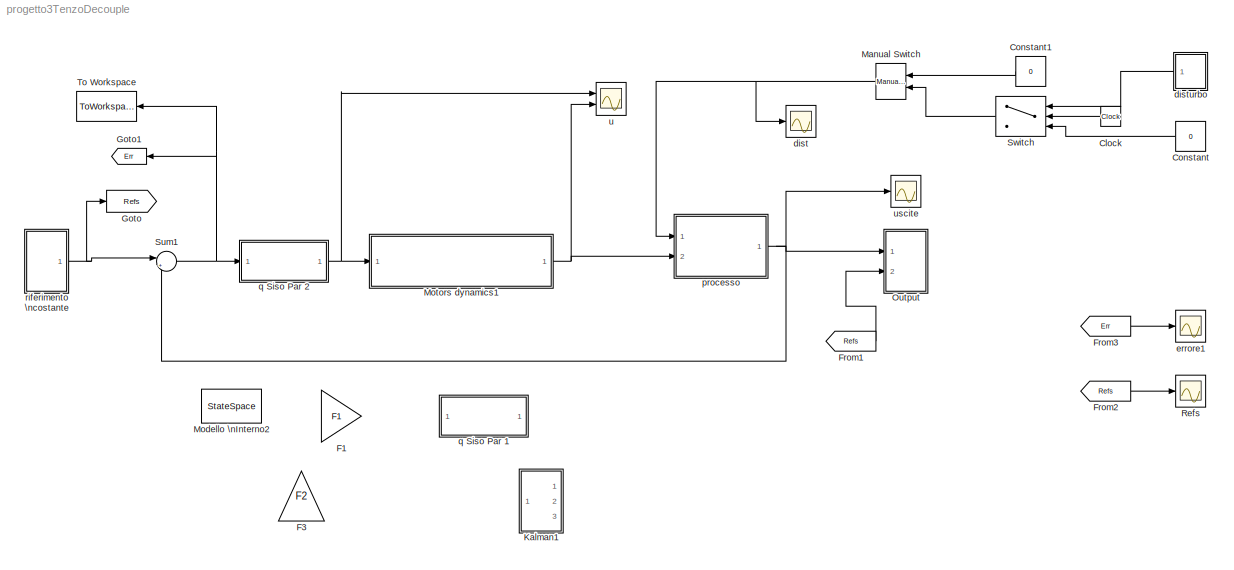
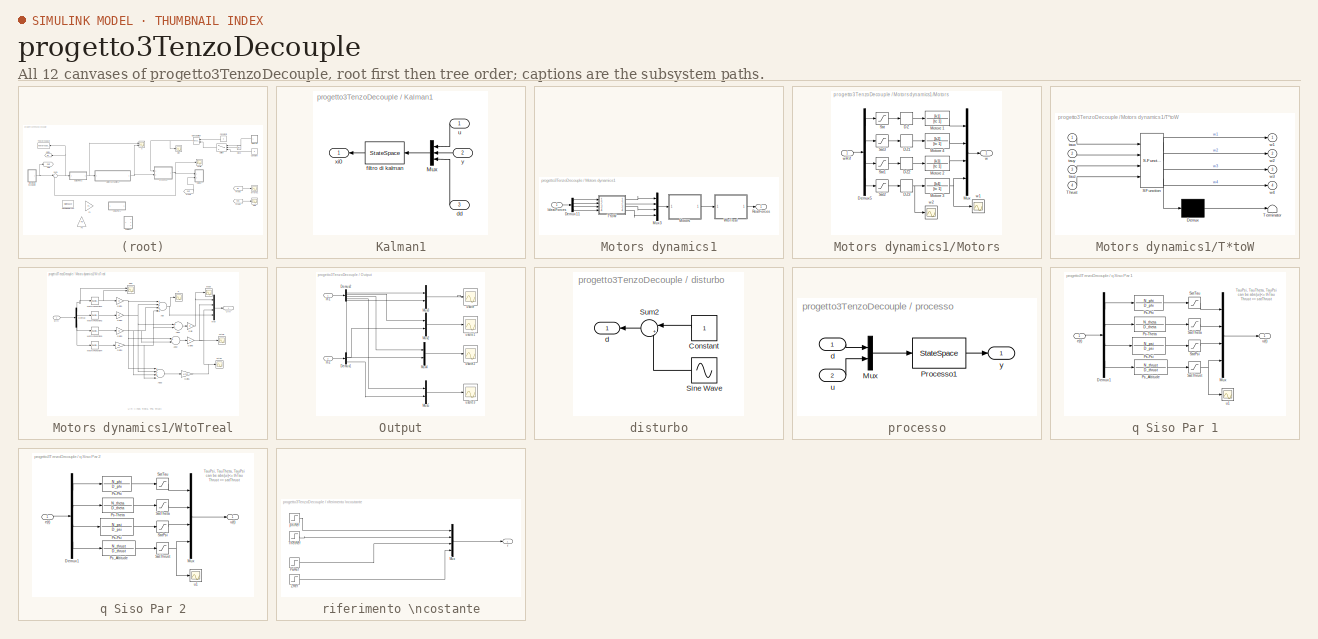
[diagram: thumbnail index - all 12 canvases of the model, root first then tree order]
MODEL progetto3TenzoDecouple
KIND model
BLOCK [Clock] Clock
  SID = 104
BLOCK [Constant] Constant
  SID = 106
  Value = 0
BLOCK [Constant] Constant1
  SID = 148
  Value = 0
BLOCK [Gain] F1
  Gain = F1
  Multiplication = Matrix(K*u) (u vector)
  OutDataTypeStr = Inherit: Inherit via internal rule
  ParamDataTypeStr = Inherit: Inherit via internal rule
  SID = 191
  SaturateOnIntegerOverflow = off
BLOCK [Gain] F3
  Gain = F2
  Multiplication = Matrix(K*u) (u vector)
  OutDataTypeStr = Inherit: Inherit via internal rule
  ParamDataTypeStr = Inherit: Inherit via internal rule
  SID = 134
  SaturateOnIntegerOverflow = off
BLOCK [From] From1
  GotoTag = Refs
  SID = 69
BLOCK [From] From2
  GotoTag = Refs
  SID = 84
BLOCK [From] From3
  GotoTag = Err
  SID = 85
BLOCK [Goto] Goto
  GotoTag = Refs
  SID = 68
BLOCK [Goto] Goto1
  GotoTag = Err
  SID = 87
BLOCK [SubSystem] Kalman1
  FunctionWithSeparateData = off
  MaskHideContents = off
  MinAlgLoopOccurrences = off
  Opaque = off
  Ports = [3, 1]
  PropExecContextOutsideSubsystem = off
  RTWSystemCode = Auto
  RequestExecContextInheritance = off
  SID = 138
BLOCK [Mux] Kalman1/Mux
  DisplayOption = bar
  Inputs = [4 4 1]
  Ports = [3, 1]
  SID = 142
BLOCK [Inport] Kalman1/dd
  IconDisplay = Port number
  Port = 3
  SID = 141
BLOCK [StateSpace] Kalman1/filtro di kalman
  A = Aoss
  B = Boss
  C = Coss
  D = Doss
  SID = 143
BLOCK [Inport] Kalman1/u
  IconDisplay = Port number
  SID = 139
BLOCK [Outport] Kalman1/xi0
  IconDisplay = Port number
  SID = 144
BLOCK [Inport] Kalman1/y
  IconDisplay = Port number
  Port = 2
  SID = 140
BLOCK [Reference] Manual Switch  REF=simulink/Signal\nRouting/Manual Switch
  Ports = [2, 1]
  SID = 149
  SourceBlock = simulink/Signal\nRouting/Manual Switch
  SourceType = Manual Switch
  action = 0
  sw = 1
  varsize = off
BLOCK [StateSpace] Modello \nInterno2
  A = AMI
  B = BMI
  C = CMI
  D = DMI
  SID = 192
BLOCK [SubSystem] Motors dynamics1
  FunctionWithSeparateData = off
  MaskHideContents = off
  MinAlgLoopOccurrences = off
  Opaque = off
  Ports = [1, 1]
  PropExecContextOutsideSubsystem = off
  RTWSystemCode = Auto
  RequestExecContextInheritance = off
  SID = 245
BLOCK [Demux] Motors dynamics1/Demux11
  DisplayOption = bar
  Ports = [1, 4]
  SID = 247
BLOCK [Inport] Motors dynamics1/IdealForces
  IconDisplay = Port number
  SID = 246
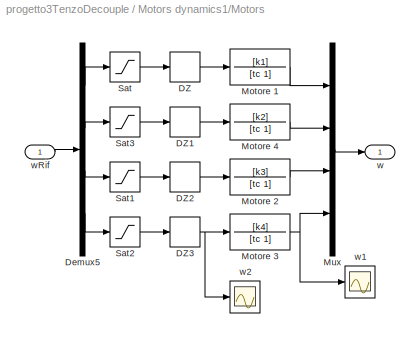
BLOCK [SubSystem] Motors dynamics1/Motors
  FunctionWithSeparateData = off
  MaskHideContents = off
  MinAlgLoopOccurrences = off
  Opaque = off
  Ports = [1, 1]
  PropExecContextOutsideSubsystem = off
  RTWSystemCode = Auto
  RequestExecContextInheritance = off
  SID = 248
BLOCK [DeadZone] Motors dynamics1/Motors/DZ
  LowerValue = 0
  SID = 250
  UpperValue = deadMotorsZone
BLOCK [DeadZone] Motors dynamics1/Motors/DZ1
  LowerValue = 0
  SID = 251
  UpperValue = deadMotorsZone
BLOCK [DeadZone] Motors dynamics1/Motors/DZ2
  LowerValue = 0
  SID = 252
  UpperValue = deadMotorsZone
BLOCK [DeadZone] Motors dynamics1/Motors/DZ3
  LowerValue = 0
  SID = 253
  UpperValue = deadMotorsZone
BLOCK [Demux] Motors dynamics1/Motors/Demux5
  DisplayOption = bar
  Ports = [1, 4]
  SID = 254
BLOCK [TransferFcn] Motors dynamics1/Motors/Motore 1
  Denominator = [tc 1]
  Numerator = [k1]
  SID = 255
BLOCK [TransferFcn] Motors dynamics1/Motors/Motore 2
  Denominator = [tc 1]
  Numerator = [k3]
  SID = 256
BLOCK [TransferFcn] Motors dynamics1/Motors/Motore 3
  Denominator = [tc 1]
  Numerator = [k4]
  SID = 257
BLOCK [TransferFcn] Motors dynamics1/Motors/Motore 4
  Denominator = [tc 1]
  Numerator = [k2]
  SID = 258
BLOCK [Mux] Motors dynamics1/Motors/Mux
  DisplayOption = bar
  Ports = [4, 1]
  SID = 259
BLOCK [Saturate] Motors dynamics1/Motors/Sat
  InputPortMap = u0
  LowerLimit = 0
  Ports = [1, 1]
  SID = 260
  UpperLimit = satMaxRPM
BLOCK [Saturate] Motors dynamics1/Motors/Sat1
  InputPortMap = u0
  LowerLimit = 0
  Ports = [1, 1]
  SID = 261
  UpperLimit = satMaxRPM
BLOCK [Saturate] Motors dynamics1/Motors/Sat2
  InputPortMap = u0
  LowerLimit = 0
  Ports = [1, 1]
  SID = 262
  UpperLimit = satMaxRPM
BLOCK [Saturate] Motors dynamics1/Motors/Sat3
  InputPortMap = u0
  LowerLimit = 0
  Ports = [1, 1]
  SID = 263
  UpperLimit = satMaxRPM
BLOCK [Outport] Motors dynamics1/Motors/w
  IconDisplay = Port number
  SID = 266
BLOCK [Scope] Motors dynamics1/Motors/w1
  DataFormat = StructureWithTime
  Floating = off
  NumInputPorts = 1
  Ports = [1]
  SID = 264
  SampleTime = 0
  SaveName = ScopeData15
  ShowLegends = off
  YMax = 999.705
  YMin = 904.495
BLOCK [Scope] Motors dynamics1/Motors/w2
  DataFormat = StructureWithTime
  Floating = off
  NumInputPorts = 1
  Ports = [1]
  SID = 265
  SampleTime = 0
  SaveName = ScopeData10
  ShowLegends = off
  YMax = 999.705
  YMin = 904.495
BLOCK [Inport] Motors dynamics1/Motors/wRif
  IconDisplay = Port number
  SID = 249
BLOCK [Mux] Motors dynamics1/Mux3
  DisplayOption = bar
  Ports = [4, 1]
  SID = 267
BLOCK [Outport] Motors dynamics1/RealForces
  IconDisplay = Port number
  SID = 294
BLOCK [SubSystem] Motors dynamics1/T*toW
  ErrorFcn = Stateflow.Translate.translate
  FunctionWithSeparateData = off
  MaskDisplay = bgColor = Simulink.Root.ColorString2Rgb(get_param(gcbh, 'BackgroundColor')); image(imread('private/eml_membrane_16.png','png','BackgroundColor',bgColor(1:3)),'center'); disp([10 10 'mixer']);
  MaskHideContents = off
  MaskIconFrame = on
  MaskIconOpaque = on
  MaskIconRotate = none
  MaskIconUnits = normalized
  MaskPortRotate = default
  MaskSelfModifiable = on
  MinAlgLoopOccurrences = off
  Opaque = off
  PermitHierarchicalResolution = ExplicitOnly
  Ports = [4, 4]
  PropExecContextOutsideSubsystem = off
  RTWSystemCode = Auto
  RequestExecContextInheritance = off
  SFBlockType = MATLAB Function
  SID = 268
  TreatAsAtomicUnit = on
BLOCK [Demux] Motors dynamics1/T*toW/ Demux 
  Outputs = 1
  Ports = [1, 1]
  SID = 268::30
BLOCK [S-Function] Motors dynamics1/T*toW/ SFunction 
  EnableBusSupport = on
  FunctionName = sf_sfun
  PortCounts = [4 5]
  Ports = [4, 5]
  SID = 268::29
  Tag = Stateflow S-Function progetto3TenzoDecouple 2
BLOCK [Terminator] Motors dynamics1/T*toW/ Terminator 
  SID = 268::31
BLOCK [Inport] Motors dynamics1/T*toW/Thrust
  IconDisplay = Port number
  Port = 4
  SID = 268::1
BLOCK [Inport] Motors dynamics1/T*toW/taux
  IconDisplay = Port number
  SID = 268::23
BLOCK [Inport] Motors dynamics1/T*toW/tauy
  IconDisplay = Port number
  Port = 2
  SID = 268::24
BLOCK [Inport] Motors dynamics1/T*toW/tauz
  IconDisplay = Port number
  Port = 3
  SID = 268::25
BLOCK [Outport] Motors dynamics1/T*toW/w1
  IconDisplay = Port number
  SID = 268::5
BLOCK [Outport] Motors dynamics1/T*toW/w2
  IconDisplay = Port number
  Port = 2
  SID = 268::26
BLOCK [Outport] Motors dynamics1/T*toW/w3
  IconDisplay = Port number
  Port = 3
  SID = 268::27
BLOCK [Outport] Motors dynamics1/T*toW/w4
  IconDisplay = Port number
  Port = 4
  SID = 268::28
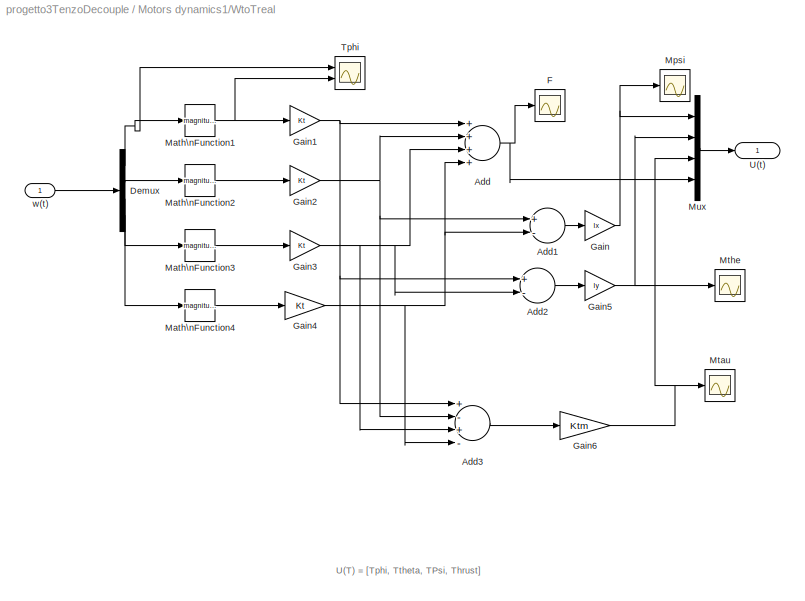
BLOCK [SubSystem] Motors dynamics1/WtoTreal
  FunctionWithSeparateData = off
  MaskHideContents = off
  MinAlgLoopOccurrences = off
  Opaque = off
  Ports = [1, 1]
  PropExecContextOutsideSubsystem = off
  RTWSystemCode = Auto
  RequestExecContextInheritance = off
  SID = 269
BLOCK [Sum] Motors dynamics1/WtoTreal/Add
  InputSameDT = off
  Inputs = ++++
  OutDataTypeStr = Inherit: Inherit via internal rule
  Ports = [4, 1]
  SID = 271
  SaturateOnIntegerOverflow = off
BLOCK [Sum] Motors dynamics1/WtoTreal/Add1
  InputSameDT = off
  Inputs = +-
  OutDataTypeStr = Inherit: Inherit via internal rule
  Ports = [2, 1]
  SID = 272
  SaturateOnIntegerOverflow = off
BLOCK [Sum] Motors dynamics1/WtoTreal/Add2
  InputSameDT = off
  Inputs = +-
  OutDataTypeStr = Inherit: Inherit via internal rule
  Ports = [2, 1]
  SID = 273
  SaturateOnIntegerOverflow = off
BLOCK [Sum] Motors dynamics1/WtoTreal/Add3
  InputSameDT = off
  Inputs = +-+-
  OutDataTypeStr = Inherit: Inherit via internal rule
  Ports = [4, 1]
  SID = 274
  SaturateOnIntegerOverflow = off
BLOCK [Demux] Motors dynamics1/WtoTreal/Demux
  DisplayOption = bar
  Ports = [1, 4]
  SID = 275
BLOCK [Scope] Motors dynamics1/WtoTreal/F
  DataFormat = StructureWithTime
  Floating = off
  NumInputPorts = 1
  Ports = [1]
  SID = 276
  SampleTime = 0
  SaveName = ScopeData17
  ShowLegends = off
  ZoomMode = yonly
BLOCK [Gain] Motors dynamics1/WtoTreal/Gain
  Gain = lx
  OutDataTypeStr = Inherit: Inherit via internal rule
  ParamDataTypeStr = Inherit: Inherit via internal rule
  SID = 278
  SaturateOnIntegerOverflow = off
BLOCK [Gain] Motors dynamics1/WtoTreal/Gain1
  Gain = Kt
  OutDataTypeStr = Inherit: Inherit via internal rule
  ParamDataTypeStr = Inherit: Inherit via internal rule
  SID = 279
  SaturateOnIntegerOverflow = off
BLOCK [Gain] Motors dynamics1/WtoTreal/Gain2
  Gain = Kt
  OutDataTypeStr = Inherit: Inherit via internal rule
  ParamDataTypeStr = Inherit: Inherit via internal rule
  SID = 280
  SaturateOnIntegerOverflow = off
BLOCK [Gain] Motors dynamics1/WtoTreal/Gain3
  Gain = Kt
  OutDataTypeStr = Inherit: Inherit via internal rule
  ParamDataTypeStr = Inherit: Inherit via internal rule
  SID = 281
  SaturateOnIntegerOverflow = off
BLOCK [Gain] Motors dynamics1/WtoTreal/Gain4
  Gain = Kt
  OutDataTypeStr = Inherit: Inherit via internal rule
  ParamDataTypeStr = Inherit: Inherit via internal rule
  SID = 282
  SaturateOnIntegerOverflow = off
BLOCK [Gain] Motors dynamics1/WtoTreal/Gain5
  Gain = ly
  OutDataTypeStr = Inherit: Inherit via internal rule
  ParamDataTypeStr = Inherit: Inherit via internal rule
  SID = 283
  SaturateOnIntegerOverflow = off
BLOCK [Gain] Motors dynamics1/WtoTreal/Gain6
  Gain = Ktm
  OutDataTypeStr = Inherit: Inherit via internal rule
  ParamDataTypeStr = Inherit: Inherit via internal rule
  SID = 284
  SaturateOnIntegerOverflow = off
BLOCK [Math] Motors dynamics1/WtoTreal/Math\nFunction1
  Operator = magnitude^2
  Ports = [1, 1]
  SID = 285
BLOCK [Math] Motors dynamics1/WtoTreal/Math\nFunction2
  Operator = magnitude^2
  Ports = [1, 1]
  SID = 286
BLOCK [Math] Motors dynamics1/WtoTreal/Math\nFunction3
  Operator = magnitude^2
  Ports = [1, 1]
  SID = 287
BLOCK [Math] Motors dynamics1/WtoTreal/Math\nFunction4
  Operator = magnitude^2
  Ports = [1, 1]
  SID = 288
BLOCK [Scope] Motors dynamics1/WtoTreal/Mpsi
  DataFormat = StructureWithTime
  Floating = off
  NumInputPorts = 1
  Ports = [1]
  SID = 289
  SampleTime = 0
  SaveName = ScopeData14
  ShowLegends = off
  ZoomMode = yonly
BLOCK [Scope] Motors dynamics1/WtoTreal/Mtau
  DataFormat = StructureWithTime
  Floating = off
  NumInputPorts = 1
  Ports = [1]
  SID = 290
  SampleTime = 0
  SaveName = ScopeData11
  ShowLegends = off
  ZoomMode = yonly
BLOCK [Scope] Motors dynamics1/WtoTreal/Mthe
  DataFormat = StructureWithTime
  Floating = off
  NumInputPorts = 1
  Ports = [1]
  SID = 291
  SampleTime = 0
  SaveName = ScopeData13
  ShowLegends = off
BLOCK [Mux] Motors dynamics1/WtoTreal/Mux
  DisplayOption = bar
  Ports = [4, 1]
  SID = 292
BLOCK [Scope] Motors dynamics1/WtoTreal/Tphi
  DataFormat = StructureWithTime
  Floating = off
  NumInputPorts = 2
  Ports = [2]
  SID = 277
  SampleTime = 0
  SaveName = ScopeData19
  ShowLegends = off
  YMax = 5~5
  YMin = -5~-5
  ZoomMode = yonly
BLOCK [Outport] Motors dynamics1/WtoTreal/U(t)
  IconDisplay = Port number
  SID = 293
BLOCK [Inport] Motors dynamics1/WtoTreal/w(t)
  IconDisplay = Port number
  SID = 270
BLOCK [SubSystem] Output
  FunctionWithSeparateData = off
  MaskHideContents = off
  MinAlgLoopOccurrences = off
  Opaque = off
  Ports = [2]
  PropExecContextOutsideSubsystem = off
  RTWSystemCode = Auto
  RequestExecContextInheritance = off
  SID = 71
BLOCK [Demux] Output/Demux1
  DisplayOption = bar
  Ports = [1, 4]
  SID = 74
BLOCK [Demux] Output/Demux2
  DisplayOption = bar
  Ports = [1, 4]
  SID = 76
BLOCK [Inport] Output/In1
  IconDisplay = Port number
  SID = 72
BLOCK [Inport] Output/In2
  IconDisplay = Port number
  Port = 2
  SID = 73
BLOCK [Mux] Output/Mux2
  DisplayOption = bar
  Inputs = 2
  Ports = [2, 1]
  SID = 77
BLOCK [Mux] Output/Mux3
  DisplayOption = bar
  Inputs = 2
  Ports = [2, 1]
  SID = 64
BLOCK [Mux] Output/Mux4
  DisplayOption = bar
  Inputs = 2
  Ports = [2, 1]
  SID = 79
BLOCK [Mux] Output/Mux5
  DisplayOption = bar
  Inputs = 2
  Ports = [2, 1]
  SID = 81
BLOCK [Scope] Output/uscite
  DataFormat = StructureWithTime
  Floating = off
  LimitDataPoints = off
  NumInputPorts = 1
  Ports = [1]
  SID = 25
  SampleTime = 0
  ShowLegends = off
  TickLabels = on
  YMax = 7
  YMin = -3.5
  ZoomMode = xonly
BLOCK [Scope] Output/uscite1
  DataFormat = StructureWithTime
  Floating = off
  LimitDataPoints = off
  NumInputPorts = 1
  Ports = [1]
  SID = 78
  SampleTime = 0
  SaveName = ScopeData4
  ShowLegends = off
  TickLabels = on
  TimeRange = 30
  YMax = 4.25
  YMin = 0.75
  ZoomMode = xonly
BLOCK [Scope] Output/uscite2
  DataFormat = StructureWithTime
  Floating = off
  LimitDataPoints = off
  NumInputPorts = 1
  Ports = [1]
  SID = 80
  SampleTime = 0
  SaveName = ScopeData6
  ShowLegends = off
  TickLabels = on
  YMax = 4.25
  YMin = 0.75
  ZoomMode = xonly
BLOCK [Scope] Output/uscite3
  DataFormat = StructureWithTime
  Floating = off
  LimitDataPoints = off
  NumInputPorts = 1
  Ports = [1]
  SID = 82
  SampleTime = 0
  SaveName = ScopeData7
  ShowLegends = off
  TickLabels = on
  YMax = 4.25
  YMin = 0.75
  ZoomMode = xonly
BLOCK [Scope] Refs
  DataFormat = StructureWithTime
  Floating = off
  LimitDataPoints = off
  NumInputPorts = 1
  Ports = [1]
  SID = 83
  SampleTime = 0
  SaveName = ScopeData1
  ShowLegends = off
BLOCK [Sum] Sum1
  IconShape = round
  InputSameDT = off
  Inputs = |+-
  OutDataTypeStr = Inherit: Inherit via internal rule
  Ports = [2, 1]
  SID = 24
  SaturateOnIntegerOverflow = off
BLOCK [Switch] Switch
  InputSameDT = off
  SID = 103
  SaturateOnIntegerOverflow = off
  Threshold = 5
BLOCK [ToWorkspace] To Workspace
  MaxDataPoints = inf
  Ports = [1]
  SID = 59
  SampleTime = -1
  SaveFormat = Structure
  VariableName = simout
BLOCK [Scope] dist
  DataFormat = StructureWithTime
  Floating = off
  LimitDataPoints = off
  NumInputPorts = 1
  Ports = [1]
  SID = 54
  SampleTime = 0
  SaveName = ScopeData5
  ShowLegends = off
BLOCK [SubSystem] disturbo
  FunctionWithSeparateData = off
  MaskHideContents = off
  MinAlgLoopOccurrences = off
  Opaque = off
  Ports = [0, 1]
  PropExecContextOutsideSubsystem = off
  RTWSystemCode = Auto
  RequestExecContextInheritance = off
  SID = 50
BLOCK [Constant] disturbo/Constant
  SID = 47
BLOCK [Sin] disturbo/Sine Wave
  Amplitude = 0.5
  Frequency = omega
  Ports = [0, 1]
  SID = 48
  SampleTime = 0
BLOCK [Sum] disturbo/Sum2
  IconShape = round
  InputSameDT = off
  Inputs = |++
  OutDataTypeStr = Inherit: Inherit via internal rule
  Ports = [2, 1]
  SID = 49
  SaturateOnIntegerOverflow = off
BLOCK [Outport] disturbo/d
  IconDisplay = Port number
  SID = 51
BLOCK [Scope] errore1
  DataFormat = StructureWithTime
  Floating = off
  LimitDataPoints = off
  NumInputPorts = 1
  Ports = [1]
  SID = 86
  SampleTime = 0
  SaveName = ScopeData8
  ShowLegends = off
BLOCK [SubSystem] processo
  FunctionWithSeparateData = off
  MaskHideContents = off
  MinAlgLoopOccurrences = off
  Opaque = off
  Ports = [2, 1]
  PropExecContextOutsideSubsystem = off
  RTWSystemCode = Auto
  RequestExecContextInheritance = off
  SID = 43
BLOCK [Mux] processo/Mux
  DisplayOption = bar
  Inputs = [1 4]
  Ports = [2, 1]
  SID = 41
BLOCK [StateSpace] processo/Processo1
  A = AMin
  B = Bmod
  C = ClocalMin
  D = Dmod
  SID = 42
BLOCK [Inport] processo/d
  IconDisplay = Port number
  SID = 44
BLOCK [Inport] processo/u
  IconDisplay = Port number
  Port = 2
  SID = 46
BLOCK [Outport] processo/y
  IconDisplay = Port number
  SID = 45
BLOCK [SubSystem] q Siso Par 1
  FunctionWithSeparateData = off
  MaskHideContents = off
  MinAlgLoopOccurrences = off
  Opaque = off
  Ports = [1, 1]
  PropExecContextOutsideSubsystem = off
  RTWSystemCode = Auto
  RequestExecContextInheritance = off
  SID = 161
BLOCK [Demux] q Siso Par 1/Demux1
  DisplayOption = bar
  Ports = [1, 4]
  SID = 163
BLOCK [Mux] q Siso Par 1/Mux
  DisplayOption = bar
  Ports = [4, 1]
  SID = 164
BLOCK [TransferFcn] q Siso Par 1/Ps-Phi
  Denominator = D_phi
  Numerator = N_phi
  SID = 165
BLOCK [TransferFcn] q Siso Par 1/Ps-Psi
  Denominator = D_psi
  Numerator = N_psi
  SID = 166
BLOCK [TransferFcn] q Siso Par 1/Ps-Theta
  Denominator = D_theta
  Numerator = N_theta
  SID = 167
BLOCK [TransferFcn] q Siso Par 1/Ps_Altitude
  Denominator = D_thrust
  Numerator = N_thrust
  SID = 168
BLOCK [Saturate] q Siso Par 1/SatPsi
  InputPortMap = u0
  LowerLimit = -satTau
  Ports = [1, 1]
  SID = 169
  UpperLimit = satTau
BLOCK [Saturate] q Siso Par 1/SatTau
  InputPortMap = u0
  LowerLimit = -satTau
  Ports = [1, 1]
  SID = 170
  UpperLimit = satTau
BLOCK [Saturate] q Siso Par 1/SatTheta
  InputPortMap = u0
  LowerLimit = -satTau
  Ports = [1, 1]
  SID = 171
  UpperLimit = satTau
BLOCK [Saturate] q Siso Par 1/SatThrust
  InputPortMap = u0
  LowerLimit = -satNegThrust
  Ports = [1, 1]
  SID = 172
  UpperLimit = satThrust
BLOCK [Inport] q Siso Par 1/e(t)
  IconDisplay = Port number
  SID = 162
BLOCK [Outport] q Siso Par 1/u(t)
  IconDisplay = Port number
  SID = 174
BLOCK [Scope] q Siso Par 1/u1
  DataFormat = StructureWithTime
  Floating = off
  LimitDataPoints = off
  NumInputPorts = 1
  Ports = [1]
  SID = 173
  SampleTime = 0
  SaveName = ScopeData9
  ShowLegends = off
  ZoomMode = xonly
BLOCK [SubSystem] q Siso Par 2
  FunctionWithSeparateData = off
  MaskHideContents = off
  MinAlgLoopOccurrences = off
  Opaque = off
  Ports = [1, 1]
  PropExecContextOutsideSubsystem = off
  RTWSystemCode = Auto
  RequestExecContextInheritance = off
  SID = 176
BLOCK [Demux] q Siso Par 2/Demux1
  DisplayOption = bar
  Ports = [1, 4]
  SID = 178
BLOCK [Mux] q Siso Par 2/Mux
  DisplayOption = bar
  Ports = [4, 1]
  SID = 179
BLOCK [TransferFcn] q Siso Par 2/Ps-Phi
  Denominator = D_phi
  Numerator = N_phi
  SID = 180
BLOCK [TransferFcn] q Siso Par 2/Ps-Psi
  Denominator = D_psi
  Numerator = N_psi
  SID = 181
BLOCK [TransferFcn] q Siso Par 2/Ps-Theta
  Denominator = D_theta
  Numerator = N_theta
  SID = 182
BLOCK [TransferFcn] q Siso Par 2/Ps_Altitude
  Denominator = D_thrust
  Numerator = N_thrust
  SID = 183
BLOCK [Saturate] q Siso Par 2/SatPsi
  InputPortMap = u0
  LowerLimit = -satTau
  Ports = [1, 1]
  SID = 184
  UpperLimit = satTau
BLOCK [Saturate] q Siso Par 2/SatTau
  InputPortMap = u0
  LowerLimit = -satTau
  Ports = [1, 1]
  SID = 185
  UpperLimit = satTau
BLOCK [Saturate] q Siso Par 2/SatTheta
  InputPortMap = u0
  LowerLimit = -satTau
  Ports = [1, 1]
  SID = 186
  UpperLimit = satTau
BLOCK [Saturate] q Siso Par 2/SatThrust
  InputPortMap = u0
  LowerLimit = -satNegThrust
  Ports = [1, 1]
  SID = 187
  UpperLimit = satThrust
BLOCK [Inport] q Siso Par 2/e(t)
  IconDisplay = Port number
  SID = 177
BLOCK [Outport] q Siso Par 2/u(t)
  IconDisplay = Port number
  SID = 189
BLOCK [Scope] q Siso Par 2/u1
  DataFormat = StructureWithTime
  Floating = off
  LimitDataPoints = off
  NumInputPorts = 1
  Ports = [1]
  SID = 188
  SampleTime = 0
  SaveName = ScopeData9
  ShowLegends = off
  ZoomMode = xonly
BLOCK [SubSystem] riferimento \ncostante
  FunctionWithSeparateData = off
  MaskHideContents = off
  MinAlgLoopOccurrences = off
  Opaque = off
  Ports = [0, 1]
  PropExecContextOutsideSubsystem = off
  RTWSystemCode = Auto
  RequestExecContextInheritance = off
  SID = 11
BLOCK [Mux] riferimento \ncostante/Mux
  DisplayOption = bar
  Inputs = [1 1 1 1]
  Ports = [4, 1]
  SID = 10
BLOCK [Step] riferimento \ncostante/PsiRef
  After = 2.5
  SID = 152
  SampleTime = 0
  Time = 0.8
BLOCK [Step] riferimento \ncostante/ThetRef
  After = 2
  SID = 151
  SampleTime = 0
  Time = 0.5
BLOCK [Step] riferimento \ncostante/ZRef
  After = 2.5
  SID = 146
  SampleTime = 0
  Time = 3
BLOCK [Step] riferimento \ncostante/phiRef
  After = 1.5
  SID = 150
  SampleTime = 0
BLOCK [Outport] riferimento \ncostante/r
  IconDisplay = Port number
  SID = 12
BLOCK [Scope] u
  DataFormat = StructureWithTime
  Floating = off
  LimitDataPoints = off
  NumInputPorts = 2
  Ports = [2]
  SID = 28
  SampleTime = 0
  SaveName = ScopeData3
  ShowLegends = off
  YMax = 5~5
  YMin = -5~-5
BLOCK [Scope] uscite
  DataFormat = StructureWithTime
  Floating = off
  LimitDataPoints = off
  NumInputPorts = 1
  Ports = [1]
  SID = 88
  SampleTime = 0
  SaveName = ScopeData2
  ShowLegends = off
  TimeRange = 80
  YMax = 15.6384603336206
  YMin = -17.45927637246444
  ZoomMode = yonly
ANNOTATION Motors dynamics1/WtoTreal: U(T) = [Tphi, Ttheta, TPsi, Thrust]
ANNOTATION q Siso Par 1: TauPsi, TauTheta, TauPsi\n can be abs(ui)<= thTau\nThrust <= satThrust
ANNOTATION q Siso Par 2: TauPsi, TauTheta, TauPsi\n can be abs(ui)<= thTau\nThrust <= satThrust
LINE Clock:1 -> Switch:2
LINE Constant1:1 -> Manual Switch:1
LINE Constant:1 -> Switch:3
LINE From1:1 -> Output:2
LINE From2:1 -> Refs:1
LINE From3:1 -> errore1:1
LINE Kalman1/Mux:1 -> Kalman1/filtro di kalman:1
LINE Kalman1/dd:1 -> Kalman1/Mux:3
LINE Kalman1/filtro di kalman:1 -> Kalman1/xi0:1
LINE Kalman1/u:1 -> Kalman1/Mux:1
LINE Kalman1/y:1 -> Kalman1/Mux:2
NET Manual Switch:1 -> dist:1, processo:1
LINE Motors dynamics1/Demux11:1 -> Motors dynamics1/T*toW:1
LINE Motors dynamics1/Demux11:2 -> Motors dynamics1/T*toW:2
LINE Motors dynamics1/Demux11:3 -> Motors dynamics1/T*toW:3
LINE Motors dynamics1/Demux11:4 -> Motors dynamics1/T*toW:4
LINE Motors dynamics1/IdealForces:1 -> Motors dynamics1/Demux11:1
LINE Motors dynamics1/Motors/DZ1:1 -> Motors dynamics1/Motors/Motore 4:1
LINE Motors dynamics1/Motors/DZ2:1 -> Motors dynamics1/Motors/Motore 2:1
NET Motors dynamics1/Motors/DZ3:1 -> Motors dynamics1/Motors/Motore 3:1, Motors dynamics1/Motors/w2:1
LINE Motors dynamics1/Motors/DZ:1 -> Motors dynamics1/Motors/Motore 1:1
LINE Motors dynamics1/Motors/Demux5:1 -> Motors dynamics1/Motors/Sat:1
LINE Motors dynamics1/Motors/Demux5:2 -> Motors dynamics1/Motors/Sat3:1
LINE Motors dynamics1/Motors/Demux5:3 -> Motors dynamics1/Motors/Sat1:1
LINE Motors dynamics1/Motors/Demux5:4 -> Motors dynamics1/Motors/Sat2:1
LINE Motors dynamics1/Motors/Motore 1:1 -> Motors dynamics1/Motors/Mux:1
LINE Motors dynamics1/Motors/Motore 2:1 -> Motors dynamics1/Motors/Mux:3
NET Motors dynamics1/Motors/Motore 3:1 -> Motors dynamics1/Motors/Mux:4, Motors dynamics1/Motors/w1:1
LINE Motors dynamics1/Motors/Motore 4:1 -> Motors dynamics1/Motors/Mux:2
LINE Motors dynamics1/Motors/Mux:1 -> Motors dynamics1/Motors/w:1
LINE Motors dynamics1/Motors/Sat1:1 -> Motors dynamics1/Motors/DZ2:1
LINE Motors dynamics1/Motors/Sat2:1 -> Motors dynamics1/Motors/DZ3:1
LINE Motors dynamics1/Motors/Sat3:1 -> Motors dynamics1/Motors/DZ1:1
LINE Motors dynamics1/Motors/Sat:1 -> Motors dynamics1/Motors/DZ:1
LINE Motors dynamics1/Motors/wRif:1 -> Motors dynamics1/Motors/Demux5:1
LINE Motors dynamics1/Motors:1 -> Motors dynamics1/WtoTreal:1
LINE Motors dynamics1/Mux3:1 -> Motors dynamics1/Motors:1
LINE Motors dynamics1/T*toW/ Demux :1 -> Motors dynamics1/T*toW/ Terminator :1
LINE Motors dynamics1/T*toW/ SFunction :1 -> Motors dynamics1/T*toW/ Demux :1
LINE Motors dynamics1/T*toW/ SFunction :2 -> Motors dynamics1/T*toW/w1:1
LINE Motors dynamics1/T*toW/ SFunction :3 -> Motors dynamics1/T*toW/w2:1
LINE Motors dynamics1/T*toW/ SFunction :4 -> Motors dynamics1/T*toW/w3:1
LINE Motors dynamics1/T*toW/ SFunction :5 -> Motors dynamics1/T*toW/w4:1
LINE Motors dynamics1/T*toW/Thrust:1 -> Motors dynamics1/T*toW/ SFunction :4
LINE Motors dynamics1/T*toW/taux:1 -> Motors dynamics1/T*toW/ SFunction :1
LINE Motors dynamics1/T*toW/tauy:1 -> Motors dynamics1/T*toW/ SFunction :2
LINE Motors dynamics1/T*toW/tauz:1 -> Motors dynamics1/T*toW/ SFunction :3
LINE Motors dynamics1/T*toW:1 -> Motors dynamics1/Mux3:1
LINE Motors dynamics1/T*toW:2 -> Motors dynamics1/Mux3:2
LINE Motors dynamics1/T*toW:3 -> Motors dynamics1/Mux3:3
LINE Motors dynamics1/T*toW:4 -> Motors dynamics1/Mux3:4
LINE Motors dynamics1/WtoTreal/Add1:1 -> Motors dynamics1/WtoTreal/Gain:1
LINE Motors dynamics1/WtoTreal/Add2:1 -> Motors dynamics1/WtoTreal/Gain5:1
LINE Motors dynamics1/WtoTreal/Add3:1 -> Motors dynamics1/WtoTreal/Gain6:1
NET Motors dynamics1/WtoTreal/Add:1 -> Motors dynamics1/WtoTreal/F:1, Motors dynamics1/WtoTreal/Mux:4
NET Motors dynamics1/WtoTreal/Demux:1 -> Motors dynamics1/WtoTreal/Math\nFunction1:1, Motors dynamics1/WtoTreal/Tphi:1
LINE Motors dynamics1/WtoTreal/Demux:2 -> Motors dynamics1/WtoTreal/Math\nFunction2:1
LINE Motors dynamics1/WtoTreal/Demux:3 -> Motors dynamics1/WtoTreal/Math\nFunction3:1
LINE Motors dynamics1/WtoTreal/Demux:4 -> Motors dynamics1/WtoTreal/Math\nFunction4:1
NET Motors dynamics1/WtoTreal/Gain1:1 -> Motors dynamics1/WtoTreal/Add2:1, Motors dynamics1/WtoTreal/Add3:1, Motors dynamics1/WtoTreal/Add:1
NET Motors dynamics1/WtoTreal/Gain2:1 -> Motors dynamics1/WtoTreal/Add1:1, Motors dynamics1/WtoTreal/Add3:2, Motors dynamics1/WtoTreal/Add:2
NET Motors dynamics1/WtoTreal/Gain3:1 -> Motors dynamics1/WtoTreal/Add2:2, Motors dynamics1/WtoTreal/Add3:3, Motors dynamics1/WtoTreal/Add:3
NET Motors dynamics1/WtoTreal/Gain4:1 -> Motors dynamics1/WtoTreal/Add1:2, Motors dynamics1/WtoTreal/Add3:4, Motors dynamics1/WtoTreal/Add:4
NET Motors dynamics1/WtoTreal/Gain5:1 -> Motors dynamics1/WtoTreal/Mthe:1, Motors dynamics1/WtoTreal/Mux:2
NET Motors dynamics1/WtoTreal/Gain6:1 -> Motors dynamics1/WtoTreal/Mtau:1, Motors dynamics1/WtoTreal/Mux:3
NET Motors dynamics1/WtoTreal/Gain:1 -> Motors dynamics1/WtoTreal/Mpsi:1, Motors dynamics1/WtoTreal/Mux:1
NET Motors dynamics1/WtoTreal/Math\nFunction1:1 -> Motors dynamics1/WtoTreal/Gain1:1, Motors dynamics1/WtoTreal/Tphi:2
LINE Motors dynamics1/WtoTreal/Math\nFunction2:1 -> Motors dynamics1/WtoTreal/Gain2:1
LINE Motors dynamics1/WtoTreal/Math\nFunction3:1 -> Motors dynamics1/WtoTreal/Gain3:1
LINE Motors dynamics1/WtoTreal/Math\nFunction4:1 -> Motors dynamics1/WtoTreal/Gain4:1
LINE Motors dynamics1/WtoTreal/Mux:1 -> Motors dynamics1/WtoTreal/U(t):1
LINE Motors dynamics1/WtoTreal/w(t):1 -> Motors dynamics1/WtoTreal/Demux:1
LINE Motors dynamics1/WtoTreal:1 -> Motors dynamics1/RealForces:1
NET Motors dynamics1:1 -> processo:2, u:2
LINE Output/Demux1:1 -> Output/Mux3:2
LINE Output/Demux1:2 -> Output/Mux2:2
LINE Output/Demux1:3 -> Output/Mux4:2
LINE Output/Demux1:4 -> Output/Mux5:2
LINE Output/Demux2:1 -> Output/Mux3:1
LINE Output/Demux2:2 -> Output/Mux2:1
LINE Output/Demux2:3 -> Output/Mux4:1
LINE Output/Demux2:4 -> Output/Mux5:1
LINE Output/In1:1 -> Output/Demux2:1
LINE Output/In2:1 -> Output/Demux1:1
LINE Output/Mux2:1 -> Output/uscite1:1
LINE Output/Mux3:1 -> Output/uscite:1
LINE Output/Mux4:1 -> Output/uscite2:1
LINE Output/Mux5:1 -> Output/uscite3:1
NET Sum1:1 -> Goto1:1, To Workspace:1, q Siso Par 2:1
LINE Switch:1 -> Manual Switch:2
LINE disturbo/Constant:1 -> disturbo/Sum2:1
LINE disturbo/Sine Wave:1 -> disturbo/Sum2:2
LINE disturbo/Sum2:1 -> disturbo/d:1
LINE disturbo:1 -> Switch:1
LINE processo/Mux:1 -> processo/Processo1:1
LINE processo/Processo1:1 -> processo/y:1
LINE processo/d:1 -> processo/Mux:1
LINE processo/u:1 -> processo/Mux:2
NET processo:1 -> Output:1, Sum1:2, uscite:1
LINE q Siso Par 1/Demux1:1 -> q Siso Par 1/Ps-Phi:1
LINE q Siso Par 1/Demux1:2 -> q Siso Par 1/Ps-Theta:1
LINE q Siso Par 1/Demux1:3 -> q Siso Par 1/Ps-Psi:1
LINE q Siso Par 1/Demux1:4 -> q Siso Par 1/Ps_Altitude:1
LINE q Siso Par 1/Mux:1 -> q Siso Par 1/u(t):1
LINE q Siso Par 1/Ps-Phi:1 -> q Siso Par 1/SatTau:1
LINE q Siso Par 1/Ps-Psi:1 -> q Siso Par 1/SatPsi:1
LINE q Siso Par 1/Ps-Theta:1 -> q Siso Par 1/SatTheta:1
LINE q Siso Par 1/Ps_Altitude:1 -> q Siso Par 1/SatThrust:1
LINE q Siso Par 1/SatPsi:1 -> q Siso Par 1/Mux:3
LINE q Siso Par 1/SatTau:1 -> q Siso Par 1/Mux:1
LINE q Siso Par 1/SatTheta:1 -> q Siso Par 1/Mux:2
NET q Siso Par 1/SatThrust:1 -> q Siso Par 1/Mux:4, q Siso Par 1/u1:1
LINE q Siso Par 1/e(t):1 -> q Siso Par 1/Demux1:1
LINE q Siso Par 2/Demux1:1 -> q Siso Par 2/Ps-Phi:1
LINE q Siso Par 2/Demux1:2 -> q Siso Par 2/Ps-Theta:1
LINE q Siso Par 2/Demux1:3 -> q Siso Par 2/Ps-Psi:1
LINE q Siso Par 2/Demux1:4 -> q Siso Par 2/Ps_Altitude:1
LINE q Siso Par 2/Mux:1 -> q Siso Par 2/u(t):1
LINE q Siso Par 2/Ps-Phi:1 -> q Siso Par 2/SatTau:1
LINE q Siso Par 2/Ps-Psi:1 -> q Siso Par 2/SatPsi:1
LINE q Siso Par 2/Ps-Theta:1 -> q Siso Par 2/SatTheta:1
LINE q Siso Par 2/Ps_Altitude:1 -> q Siso Par 2/SatThrust:1
LINE q Siso Par 2/SatPsi:1 -> q Siso Par 2/Mux:3
LINE q Siso Par 2/SatTau:1 -> q Siso Par 2/Mux:1
LINE q Siso Par 2/SatTheta:1 -> q Siso Par 2/Mux:2
NET q Siso Par 2/SatThrust:1 -> q Siso Par 2/Mux:4, q Siso Par 2/u1:1
LINE q Siso Par 2/e(t):1 -> q Siso Par 2/Demux1:1
NET q Siso Par 2:1 -> Motors dynamics1:1, u:1
LINE riferimento \ncostante/Mux:1 -> riferimento \ncostante/r:1
LINE riferimento \ncostante/PsiRef:1 -> riferimento \ncostante/Mux:3
LINE riferimento \ncostante/ThetRef:1 -> riferimento \ncostante/Mux:2
LINE riferimento \ncostante/ZRef:1 -> riferimento \ncostante/Mux:4
LINE riferimento \ncostante/phiRef:1 -> riferimento \ncostante/Mux:1
NET riferimento \ncostante:1 -> Goto:1, Sum1:1
note: NET lines group one-source signal fan-out (src -> all destinations, sorted); 1:1 wires keep LINE
CHART Motors dynamics1/T*toW states=1 transitions=1
  STATE_LABEL 'eML_blk_kernel()'
